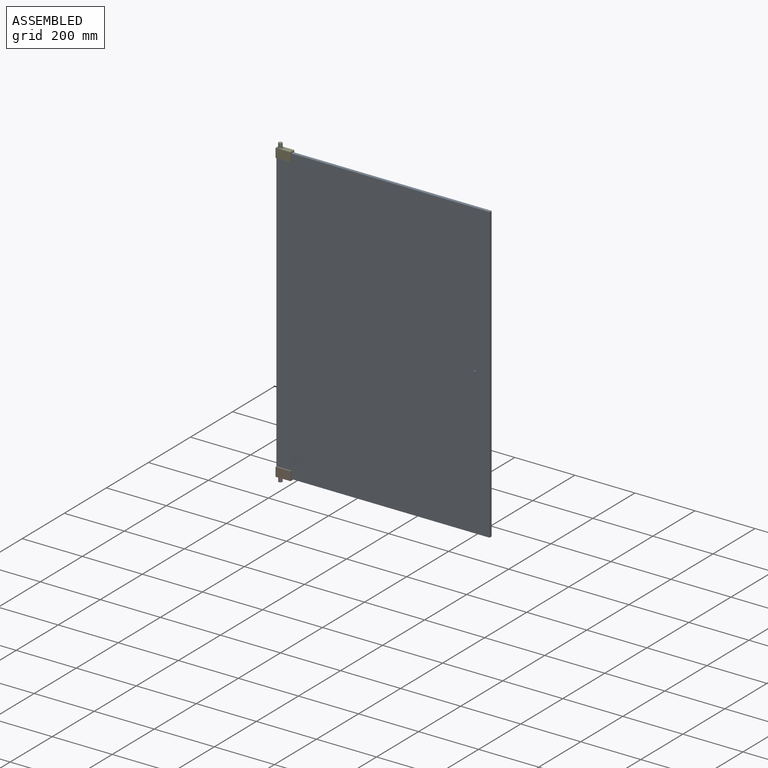
[diagram: assembled view]
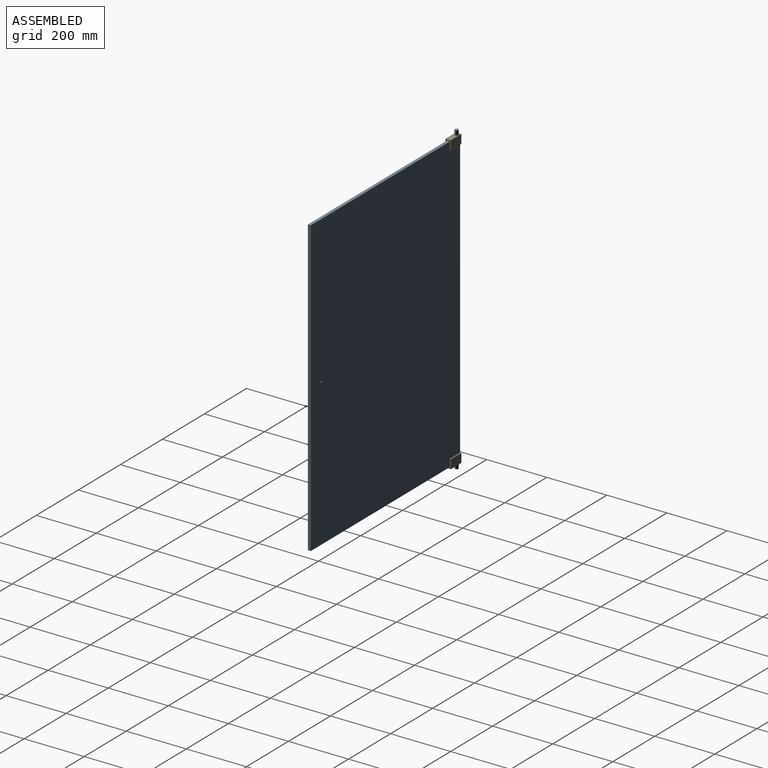
[diagram: assembled view, second angle]
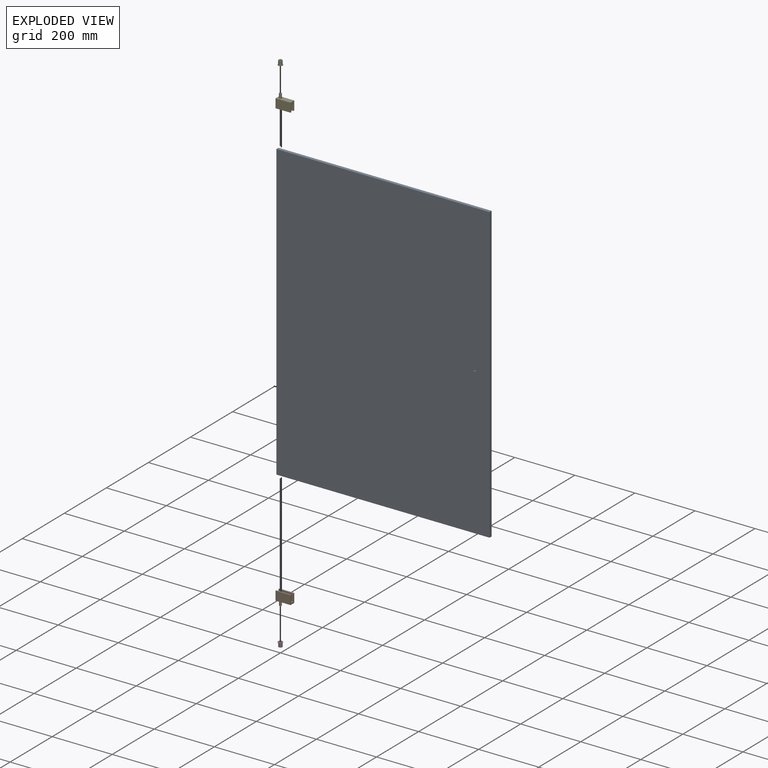
[diagram: exploded view]
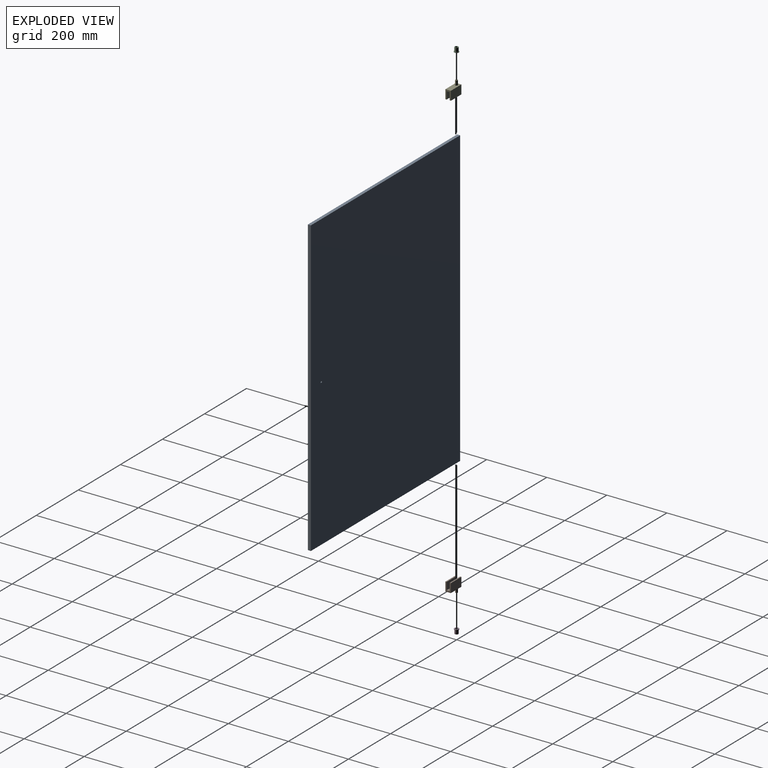
[diagram: exploded view, second angle]
ASSEMBLY  parts=5 mates=4
PART A: 7 faces, bbox 710x10x980 mm
  f0: plane 980x10mm, normal (-1,0,0), area 9800mm2, adj f1,f3,f4,f5
  f1: plane 710x10mm, normal (0,0,-1), area 7100mm2, adj f0,f2,f4,f5
  f2: plane 980x10mm, normal (1,0,0), area 9800mm2, adj f1,f3,f4,f5
  f3: plane 710x10mm, normal (0,0,1), area 7100mm2, adj f0,f2,f4,f5
  f4: plane 980x710mm, normal (0,-1,0), area 695771.7mm2, adj f0,f1,f2,f3,f6
  f5: plane 980x710mm, normal (0,1,0), area 695771.7mm2, adj f0,f1,f2,f3,f6
  f6: cylinder r=3mm len=10mm, axis (0,-1,0), area 188.5mm2, adj f4,f5
PART B: 12 faces, bbox 50x18x45 mm
  f0: plane 50x4mm, normal (0,0,1), area 200mm2, adj f4,f5,f6,f11
  f1: cylinder r=4mm len=15mm, axis (0,0,-1), area 377mm2, adj f2,f8
  f2: plane 8x8mm, normal (0,0,-1), area 50.3mm2, adj f1
  f3: plane 50x30mm, normal (0,1,0), area 1500mm2, adj f4,f6,f7,f8
  f4: plane 30x18mm, normal (-1,0,0), area 290mm2, adj f0,f3,f5,f7,f8,f9,f10,f11
  f5: plane 50x30mm, normal (0,-1,0), area 1500mm2, adj f0,f4,f6,f8
  f6: plane 30x18mm, normal (1,0,0), area 290mm2, adj f0,f3,f5,f7,f8,f9,f10,f11
  f7: plane 50x4mm, normal (0,0,1), area 200mm2, adj f3,f4,f6,f10
  f8: plane 50x18mm, normal (0,0,-1), area 849.7mm2, adj f1,f3,f4,f5,f6
  f9: plane 50x10mm, normal (0,0,1), area 500mm2, adj f4,f6,f10,f11
  f10: plane 50x25mm, normal (0,-1,0), area 1250mm2, adj f4,f6,f7,f9
  f11: plane 50x25mm, normal (0,1,0), area 1250mm2, adj f0,f4,f6,f9
PART C: 6 faces, bbox 15x15x15 mm
  f0: cylinder r=4mm len=15mm, axis (0,0,-1), area 377mm2, adj f1,f5
  f1: plane 15x15mm, normal (0,0,1), area 126.4mm2, adj f0,f2
  f2: cylinder r=7.5mm len=15mm, axis (0,0,-1), area 94.2mm2, adj f1,f3
  f3: plane 15x15mm, normal (0,0,-1), area 63.6mm2, adj f2,f4
  f4: cylinder r=6mm len=13mm, axis (0,0,-1), area 490.1mm2, adj f3,f5
  f5: plane 12x12mm, normal (0,0,-1), area 62.8mm2, adj f0,f4
PART D: same geometry as C
PART E: same geometry as B
PLACE A t=(-10,4.86,20)mm
PLACE B t=(0,-0.14,0)mm
PLACE C rot(axis=(-1,0,0),180deg) t=(0,-0.27,1020)mm
PLACE D at identity
PLACE E rot(axis=(-1,0,0),180deg) t=(0,-0.14,1020)mm
MATE fastened A.f3 <-> E.f9  axis (0,0,1) through (-10,-5.14,1000)mm
MATE fastened A.f1 <-> B.f9  axis (0,0,-1) through (-10,-5.14,20)mm
MATE revolute D.f0 <-> B.f1  axis (0,0,-1) through (0,0,15)mm
MATE revolute C.f0 <-> E.f1  axis (0,0,1) through (0,-0.27,1005)mm
